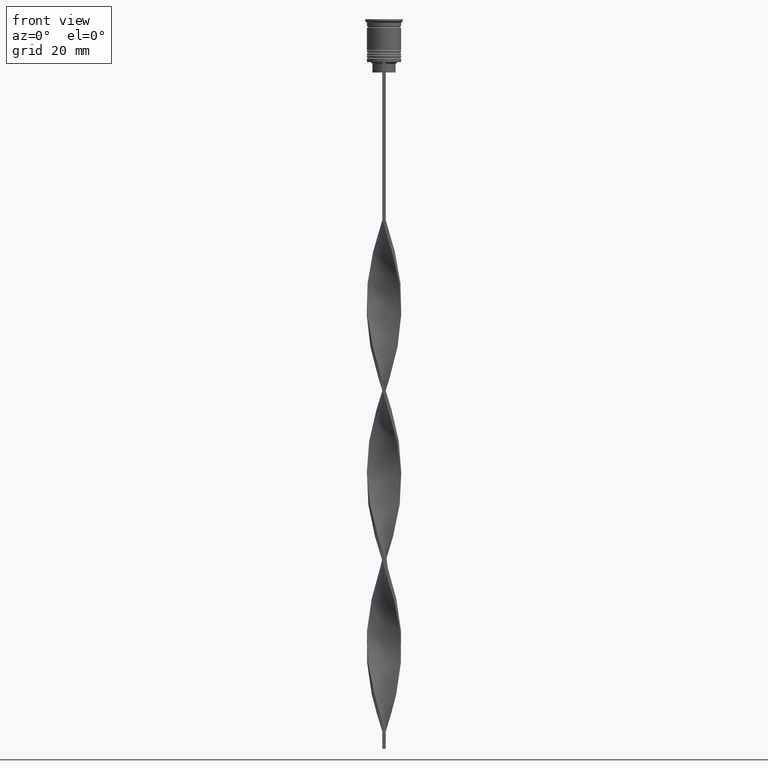
[diagram: clean part render]
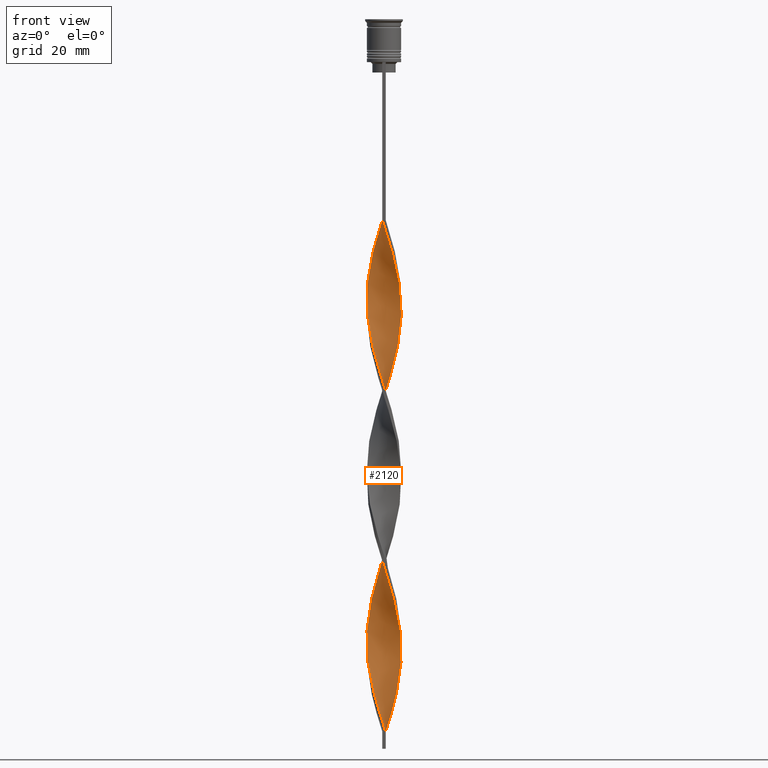
[diagram: same view with one face highlighted and labeled with its STEP entity id]
A machine part, front view. The second image highlights one B-rep face of the part: STEP entity #2120.
In plain terms, the highlighted face is a freeform B-spline surface patch.
Its self-contained STEP definition (entity closure, byte-faithful):
#2 = CARTESIAN_POINT ( 'NONE',  ( -4.049165433819489124, 3.011821659854192479, -170.9803921568627629 ) ) ;
#16 = CARTESIAN_POINT ( 'NONE',  ( 3.057269382251585288, 3.987869597209392936, -198.7352941176470722 ) ) ;
#21 = CARTESIAN_POINT ( 'NONE',  ( -4.533641475362164996, 2.216507476658134301, -74.56862745098038658 ) ) ;
#23 = CARTESIAN_POINT ( 'NONE',  ( 2.207052246521974403, 4.514301760086747883, -149.0686274509803866 ) ) ;
#35 = CARTESIAN_POINT ( 'NONE',  ( 4.291403454590825284, 2.614164568256161392, -93.55882352941176805 ) ) ;
#45 = CARTESIAN_POINT ( 'NONE',  ( -3.737982676843116359, 3.358196764280017454, -169.5196078431372371 ) ) ;
#47 = CARTESIAN_POINT ( 'NONE',  ( -1.410234138924802982, 4.822990739511224589, -160.7549019607842808 ) ) ;
#52 = CARTESIAN_POINT ( 'NONE',  ( -4.252947278887043048, 2.676273424560220882, -125.6960784313725412 ) ) ;
#65 = CARTESIAN_POINT ( 'NONE',  ( 1.857150046639456598, -4.692313302143463538, -112.5490196078431495 ) ) ;
#74 = CARTESIAN_POINT ( 'NONE',  ( -0.4272610392408995317, 5.006740257327792598, -111.0882352941176379 ) ) ;
#82 = CARTESIAN_POINT ( 'NONE',  ( -3.372583611396491321, -3.753996564375790435, -194.3529411764705799 ) ) ;
#92 = CARTESIAN_POINT ( 'NONE',  ( 0.03668176878985084099, 5.046331823121014359, -109.6274509803921546 ) ) ;
#102 = CARTESIAN_POINT ( 'NONE',  ( 2.998973759622456825, 4.031892407926575217, -146.1470588235294201 ) ) ;
#112 = VERTEX_POINT ( 'NONE', #3618 ) ;
#115 = CARTESIAN_POINT ( 'NONE',  ( -3.372583611396490877, 3.753996564375788658, -121.3137254901960631 ) ) ;
#125 = CARTESIAN_POINT ( 'NONE',  ( -5.028189627835278230, 0.4290914677958227452, -179.7450980392157476 ) ) ;
#134 = CARTESIAN_POINT ( 'NONE',  ( -0.5000000000000000000, 5.000000000000000888, -58.50000000000000000 ) ) ;
#141 = CARTESIAN_POINT ( 'NONE',  ( -0.8912038472716539150, -4.967148691534573501, -203.1176470588235361 ) ) ;
#150 = CARTESIAN_POINT ( 'NONE',  ( -4.698685634663581467, 1.781110133205160651, -76.02941176470586981 ) ) ;
#160 = CARTESIAN_POINT ( 'NONE',  ( 1.788740585195520927, -4.718815268696137544, -65.80392156862745878 ) ) ;
#173 = CARTESIAN_POINT ( 'NONE',  ( 1.857150046639457264, 4.692313302143462650, -203.1176470588235361 ) ) ;
#181 = CARTESIAN_POINT ( 'NONE',  ( -4.500940532747436329, 2.282179822423429982, -127.1568627450980244 ) ) ;
#204 = CARTESIAN_POINT ( 'NONE',  ( 3.057269382251585288, 3.987869597209392936, -99.40196078431372939 ) ) ;
#221 = CARTESIAN_POINT ( 'NONE',  ( 0.4999999999999993339, -5.000000000000000888, -207.5000000000000000 ) ) ;
#243 = CARTESIAN_POINT ( 'NONE',  ( -0.5000000000000000000, -4.999999999999999112, -157.8333333333333144 ) ) ;
#251 = CARTESIAN_POINT ( 'NONE',  ( 5.024805061206823353, -0.03652529083100791024, -184.1274509803921546 ) ) ;
#264 = CARTESIAN_POINT ( 'NONE',  ( 1.788740585195520927, -4.718815268696137544, -65.80392156862747299 ) ) ;
#272 = CARTESIAN_POINT ( 'NONE',  ( -4.843652908908672394, -1.416275721470217963, -86.25490196078432348 ) ) ;
#280 = CARTESIAN_POINT ( 'NONE',  ( 4.004954025026647102, -3.070367026697014889, -74.56862745098038658 ) ) ;
#284 = CARTESIAN_POINT ( 'NONE',  ( 4.863729793964998827, 1.345712789752186556, -188.5098039215686185 ) ) ;
#289 = CARTESIAN_POINT ( 'NONE',  ( -1.410234138924802982, 4.822990739511224589, -61.42156862745097357 ) ) ;
#292 = CARTESIAN_POINT ( 'NONE',  ( -0.03668176878985122263, 5.046331823121017024, -156.3725490196078454 ) ) ;
#312 = CARTESIAN_POINT ( 'NONE',  ( -4.004954025026648878, -3.070367026697016666, -92.09803921568628482 ) ) ;
#315 = CARTESIAN_POINT ( 'NONE',  ( 0.4999999999999993339, -5.000000000000000888, -207.5000000000000000 ) ) ;
#323 = DIRECTION ( 'NONE',  ( 0.000000000000000000, 1.000000000000000000, 0.000000000000000000 ) ) ;
#326 = CARTESIAN_POINT ( 'NONE',  ( 4.945959710900135420, 0.8874021287740047059, -87.71568627450979250 ) ) ;
#332 = CARTESIAN_POINT ( 'NONE',  ( -4.698685634663581467, 1.781110133205160651, -76.02941176470586981 ) ) ;
#334 = CARTESIAN_POINT ( 'NONE',  ( -3.737982676843116359, 3.358196764280017454, -169.5196078431372371 ) ) ;
#343 = CARTESIAN_POINT ( 'NONE',  ( -4.945959710900135420, -0.8874021287740040398, -137.3823529411764639 ) ) ;
#360 = CARTESIAN_POINT ( 'NONE',  ( 4.252947278887042160, -2.676273424560222214, -175.3627450980391984 ) ) ;
#369 = CARTESIAN_POINT ( 'NONE',  ( -4.533641475362164996, 2.216507476658134301, -173.9019607843137294 ) ) ;
#371 = CARTESIAN_POINT ( 'NONE',  ( -0.9633182312101491451, 4.953668176878985641, -159.2941176470588118 ) ) ;
#380 = CARTESIAN_POINT ( 'NONE',  ( -2.272444445637942678, -4.481740313928202823, -151.9901960784313530 ) ) ;
#392 = CARTESIAN_POINT ( 'NONE',  ( -3.688768818211570988, -3.412181795536401552, -192.8921568627450824 ) ) ;
#404 = CARTESIAN_POINT ( 'NONE',  ( -4.863729793964999715, -1.345712789752185223, -138.8431372549019045 ) ) ;
#412 = CARTESIAN_POINT ( 'NONE',  ( -3.426799919866744482, 3.704571868705844206, -168.0588235294117680 ) ) ;
#421 = CARTESIAN_POINT ( 'NONE',  ( 4.500940532747437217, -2.282179822423430426, -176.8235294117647243 ) ) ;
#430 = CARTESIAN_POINT ( 'NONE',  ( 1.788740585195520927, 4.718815268696140208, -150.5294117647058840 ) ) ;
#440 = CARTESIAN_POINT ( 'NONE',  ( -2.272444445637943122, 4.481740313928203712, -64.34313725490196134 ) ) ;
#450 = CARTESIAN_POINT ( 'NONE',  ( 0.4272610392408995317, 5.006740257327794374, -154.9117647058823479 ) ) ;
#460 = CARTESIAN_POINT ( 'NONE',  ( 1.857150046639456598, -4.692313302143463538, -112.5490196078431495 ) ) ;
#467 = CARTESIAN_POINT ( 'NONE',  ( 5.024805061206823353, -0.03652529083100791024, -84.79411764705882604 ) ) ;
#475 = CARTESIAN_POINT ( 'NONE',  ( -2.998973759622457713, -4.031892407926574329, -96.48039215686274872 ) ) ;
#486 = CARTESIAN_POINT ( 'NONE',  ( -3.688768818211568323, 3.412181795536401552, -122.7745098039215605 ) ) ;
#496 = CARTESIAN_POINT ( 'NONE',  ( 4.533641475362164108, -2.216507476658135634, -124.2352941176470580 ) ) ;
#505 = CARTESIAN_POINT ( 'NONE',  ( -2.625363907848421885, 4.309788251477359111, -118.3921568627451109 ) ) ;
#528 = CARTESIAN_POINT ( 'NONE',  ( 4.843652908908670618, -1.416275721470217297, -80.41176470588234793 ) ) ;
#535 = ORIENTED_EDGE ( 'NONE', *, *, #3729, .T. ) ;
#565 = CARTESIAN_POINT ( 'NONE',  ( 0.5000000000000006661, 4.999999999999999112, -207.5000000000000000 ) ) ;
#569 = CARTESIAN_POINT ( 'NONE',  ( -3.737982676843116359, 3.358196764280017454, -70.18627450980390847 ) ) ;
#573 = CARTESIAN_POINT ( 'NONE',  ( -2.625363907848424105, -4.309788251477359999, -97.94117647058824616 ) ) ;
#587 = CARTESIAN_POINT ( 'NONE',  ( 4.932536701743520879, -0.9592088854640271611, -81.87254901960783116 ) ) ;
#590 = CARTESIAN_POINT ( 'NONE',  ( 1.339972216233586311, -4.842981980115355078, -163.6764705882352757 ) ) ;
#593 = CARTESIAN_POINT ( 'NONE',  ( -5.021420494578373805, -0.5021420494578369143, -83.33333333333332860 ) ) ;
#595 = CARTESIAN_POINT ( 'NONE',  ( 4.500940532747439882, 2.282179822423429094, -138.8431372549019045 ) ) ;
#604 = CARTESIAN_POINT ( 'NONE',  ( 2.998973759622455937, -4.031892407926573441, -70.18627450980390847 ) ) ;
#609 = CARTESIAN_POINT ( 'NONE',  ( 3.426799919866743149, 3.704571868705843318, -197.2745098039215463 ) ) ;
#616 = CARTESIAN_POINT ( 'NONE',  ( -4.698685634663581467, 1.781110133205160651, -175.3627450980391984 ) ) ;
#625 = CARTESIAN_POINT ( 'NONE',  ( 3.688768818211569211, -3.412181795536401108, -73.10784313725488914 ) ) ;
#628 = CARTESIAN_POINT ( 'NONE',  ( -2.272444445637942678, -4.481740313928202823, -151.9901960784313530 ) ) ;
#634 = CARTESIAN_POINT ( 'NONE',  ( -2.625363907848424105, -4.309788251477359999, -97.94117647058824616 ) ) ;
#635 = CARTESIAN_POINT ( 'NONE',  ( 3.688768818211571876, 3.412181795536401108, -143.2254901960784537 ) ) ;
#643 = CARTESIAN_POINT ( 'NONE',  ( -3.688768818211568323, 3.412181795536401552, -122.7745098039215605 ) ) ;
#650 = CARTESIAN_POINT ( 'NONE',  ( -1.339972216233586977, -4.842981980115355967, -102.3235294117646959 ) ) ;
#653 = CARTESIAN_POINT ( 'NONE',  ( -0.4272610392409010860, -5.006740257327794374, -204.5784313725490335 ) ) ;
#659 = CARTESIAN_POINT ( 'NONE',  ( 2.207052246521970851, -4.514301760086748772, -166.5980392156862706 ) ) ;
#666 = CARTESIAN_POINT ( 'NONE',  ( -3.057269382251586176, 3.987869597209393824, -166.5980392156862706 ) ) ;
#677 = CARTESIAN_POINT ( 'NONE',  ( -1.857150046639457930, -4.692313302143461762, -153.4509803921568789 ) ) ;
#686 = CARTESIAN_POINT ( 'NONE',  ( 2.625363907848424549, 4.309788251477359999, -147.6078431372548891 ) ) ;
#696 = CARTESIAN_POINT ( 'NONE',  ( 3.372583611396490877, -3.753996564375789102, -170.9803921568627629 ) ) ;
#705 = CARTESIAN_POINT ( 'NONE',  ( 5.021420494578373805, 0.5021420494578362481, -133.0000000000000000 ) ) ;
#715 = CARTESIAN_POINT ( 'NONE',  ( -5.028189627835276454, -0.4290914677958234114, -135.9215686274509665 ) ) ;
#723 = CARTESIAN_POINT ( 'NONE',  ( -5.024805061206824242, -0.03652529083100704288, -181.2058823529411598 ) ) ;
#736 = CARTESIAN_POINT ( 'NONE',  ( -5.028189627835278230, 0.4290914677958227452, -80.41176470588234793 ) ) ;
#745 = CARTESIAN_POINT ( 'NONE',  ( -4.672296720828054362, -1.849227771946824417, -187.0490196078431211 ) ) ;
#756 = CARTESIAN_POINT ( 'NONE',  ( 0.03668176878985188183, -5.046331823121017024, -106.7058823529412024 ) ) ;
#766 = CARTESIAN_POINT ( 'NONE',  ( 4.672296720828052585, -1.849227771946823307, -78.95098039215686470 ) ) ;
#779 = CARTESIAN_POINT ( 'NONE',  ( -4.500940532747438994, -2.282179822423430871, -89.17647058823527573 ) ) ;
#787 = CARTESIAN_POINT ( 'NONE',  ( -1.788740585195520483, 4.718815268696137544, -115.4705882352941018 ) ) ;
#797 = CARTESIAN_POINT ( 'NONE',  ( 4.863729793964998827, 1.345712789752186556, -188.5098039215686185 ) ) ;
#808 = CARTESIAN_POINT ( 'NONE',  ( 4.049165433819487347, 3.011821659854190703, -95.01960784313726549 ) ) ;
#828 = CARTESIAN_POINT ( 'NONE',  ( -5.021420494578372029, 0.5021420494578382465, -133.0000000000000000 ) ) ;
#849 = CARTESIAN_POINT ( 'NONE',  ( -4.004954025026647102, 3.070367026697016222, -124.2352941176470580 ) ) ;
#865 = FACE_OUTER_BOUND ( 'NONE', #1157, .T. ) ;
#868 = CARTESIAN_POINT ( 'NONE',  ( 4.500940532747436329, -2.282179822423430426, -176.8235294117647243 ) ) ;
#879 = CARTESIAN_POINT ( 'NONE',  ( -5.024805061206824242, -0.03652529083100704288, -81.87254901960783116 ) ) ;
#893 = CARTESIAN_POINT ( 'NONE',  ( -3.426799919866744037, -3.704571868705841986, -147.6078431372548891 ) ) ;
#901 = CARTESIAN_POINT ( 'NONE',  ( 0.03668176878985188183, -5.046331823121017024, -206.0392156862745026 ) ) ;
#916 = CARTESIAN_POINT ( 'NONE',  ( 5.021420494578372029, -0.5021420494578375804, -182.6666666666666856 ) ) ;
#920 = CARTESIAN_POINT ( 'NONE',  ( -2.687738844636429647, 4.271167325712944773, -65.80392156862745878 ) ) ;
#923 = CARTESIAN_POINT ( 'NONE',  ( -2.625363907848424105, -4.309788251477359999, -197.2745098039215463 ) ) ;
#944 = CARTESIAN_POINT ( 'NONE',  ( -4.843652908908672394, -1.416275721470217963, -185.5882352941176237 ) ) ;
#945 = VERTEX_POINT ( 'NONE', #2390 ) ;
#953 = CARTESIAN_POINT ( 'NONE',  ( 4.932536701743520879, -0.9592088854640271611, -181.2058823529411598 ) ) ;
#957 = CARTESIAN_POINT ( 'NONE',  ( -4.049165433819486459, -3.011821659854192479, -144.6862745098039227 ) ) ;
#960 = CARTESIAN_POINT ( 'NONE',  ( -0.5000000000000000000, 5.000000000000000888, -58.50000000000000000 ) ) ;
#961 = CARTESIAN_POINT ( 'NONE',  ( -3.372583611396491321, -3.753996564375790879, -194.3529411764705799 ) ) ;
#971 = CARTESIAN_POINT ( 'NONE',  ( -4.533641475362163220, -2.216507476658133413, -141.7647058823529562 ) ) ;
#979 = CARTESIAN_POINT ( 'NONE',  ( 0.4999999999999993339, -5.000000000000000888, -108.1666666666666572 ) ) ;
#982 = CARTESIAN_POINT ( 'NONE',  ( -2.998973759622457713, -4.031892407926574329, -195.8137254901960773 ) ) ;
#989 = CARTESIAN_POINT ( 'NONE',  ( -3.057269382251587064, -3.987869597209391159, -149.0686274509803866 ) ) ;
#996 = CARTESIAN_POINT ( 'NONE',  ( -4.932536701743522656, -0.9592088854640269391, -184.1274509803921546 ) ) ;
#1007 = CARTESIAN_POINT ( 'NONE',  ( -4.698685634663579691, -1.781110133205161095, -140.3039215686274588 ) ) ;
#1014 = CARTESIAN_POINT ( 'NONE',  ( -2.625363907848424105, -4.309788251477359999, -197.2745098039215463 ) ) ;
#1026 = CARTESIAN_POINT ( 'NONE',  ( 4.004954025026647102, -3.070367026697014889, -173.9019607843137294 ) ) ;
#1034 = CARTESIAN_POINT ( 'NONE',  ( 4.252947278887043048, 2.676273424560224434, -140.3039215686274588 ) ) ;
#1046 = CARTESIAN_POINT ( 'NONE',  ( -4.004954025026648878, -3.070367026697016666, -92.09803921568628482 ) ) ;
#1053 = CARTESIAN_POINT ( 'NONE',  ( 3.426799919866743149, -3.704571868705845095, -118.3921568627451109 ) ) ;
#1062 = CARTESIAN_POINT ( 'NONE',  ( 4.291403454590825284, 2.614164568256161392, -192.8921568627450824 ) ) ;
#1072 = CARTESIAN_POINT ( 'NONE',  ( 2.625363907848422773, -4.309788251477359111, -68.72549019607842524 ) ) ;
#1080 = CARTESIAN_POINT ( 'NONE',  ( 2.272444445637942234, 4.481740313928202823, -201.6568627450980387 ) ) ;
#1091 = CARTESIAN_POINT ( 'NONE',  ( 2.207052246521970851, -4.514301760086748772, -67.26470588235292780 ) ) ;
#1102 = CARTESIAN_POINT ( 'NONE',  ( 3.426799919866742705, -3.704571868705845095, -118.3921568627451109 ) ) ;
#1110 = CARTESIAN_POINT ( 'NONE',  ( 0.8912038472716523607, -4.967148691534572613, -62.88235294117647101 ) ) ;
#1123 = CARTESIAN_POINT ( 'NONE',  ( 0.4999999999999997780, -1.666666666666667851, -207.5000000000000000 ) ) ;
#1129 = CARTESIAN_POINT ( 'NONE',  ( -1.788740585195522481, -4.718815268696138432, -200.1960784313725696 ) ) ;
#1150 = CARTESIAN_POINT ( 'NONE',  ( -0.5000000000000000000, -4.999999999999999112, -58.50000000000000000 ) ) ;
#1157 = EDGE_LOOP ( 'NONE', ( #535, #3354, #2734, #2328 ) ) ;
#1170 = CARTESIAN_POINT ( 'NONE',  ( -1.410234138924801206, -4.822990739511222813, -154.9117647058823479 ) ) ;
#1174 = CARTESIAN_POINT ( 'NONE',  ( -3.737982676843116359, 3.358196764280017454, -70.18627450980390847 ) ) ;
#1182 = CARTESIAN_POINT ( 'NONE',  ( 4.672296720828052585, -1.849227771946823307, -78.95098039215686470 ) ) ;
#1192 = CARTESIAN_POINT ( 'NONE',  ( -0.9633182312101491451, 4.953668176878985641, -59.96078431372549034 ) ) ;
#1196 = CARTESIAN_POINT ( 'NONE',  ( 3.372583611396490433, 3.753996564375791323, -144.6862745098039227 ) ) ;
#1208 = CARTESIAN_POINT ( 'NONE',  ( 0.8912038472716523607, -4.967148691534572613, -162.2156862745098351 ) ) ;
#1216 = CARTESIAN_POINT ( 'NONE',  ( -4.932536701743522656, -0.9592088854640269391, -184.1274509803921546 ) ) ;
#1229 = CARTESIAN_POINT ( 'NONE',  ( -3.057269382251587064, -3.987869597209391159, -149.0686274509803866 ) ) ;
#1232 = CARTESIAN_POINT ( 'NONE',  ( -4.945959710900137196, 0.8874021287740044839, -78.95098039215686470 ) ) ;
#1233 = CARTESIAN_POINT ( 'NONE',  ( -2.687738844636429203, 4.271167325712945662, -165.1372549019608016 ) ) ;
#1244 = CARTESIAN_POINT ( 'NONE',  ( 2.272444445637942234, 4.481740313928202823, -201.6568627450980387 ) ) ;
#1249 = CARTESIAN_POINT ( 'NONE',  ( -3.372583611396491321, -3.753996564375790435, -95.01960784313726549 ) ) ;
#1262 = CARTESIAN_POINT ( 'NONE',  ( -4.672296720828052585, 1.849227771946825083, -128.6176470588235361 ) ) ;
#1272 = CARTESIAN_POINT ( 'NONE',  ( 1.410234138924801650, -4.822990739511224589, -111.0882352941176379 ) ) ;
#1283 = CARTESIAN_POINT ( 'NONE',  ( -2.207052246521971295, 4.514301760086747883, -116.9313725490195992 ) ) ;
#1294 = CARTESIAN_POINT ( 'NONE',  ( 4.863729793965000603, -1.345712789752187444, -127.1568627450980244 ) ) ;
#1303 = CARTESIAN_POINT ( 'NONE',  ( -0.8912038472716523607, 4.967148691534572613, -112.5490196078431495 ) ) ;
#1310 = CARTESIAN_POINT ( 'NONE',  ( -2.998973759622457713, -4.031892407926574329, -195.8137254901960773 ) ) ;
#1323 = CARTESIAN_POINT ( 'NONE',  ( 0.5000000000000006661, 4.999999999999999112, -108.1666666666666572 ) ) ;
#1330 = CARTESIAN_POINT ( 'NONE',  ( 0.8912038472716545812, 4.967148691534573501, -153.4509803921568789 ) ) ;
#1337 = EDGE_CURVE ( 'NONE', #3496, #945, #3888, .T. ) ;
#1342 = CARTESIAN_POINT ( 'NONE',  ( -4.291403454590826172, -2.614164568256160948, -143.2254901960784537 ) ) ;
#1351 = CARTESIAN_POINT ( 'NONE',  ( -4.252947278887043936, -2.676273424560222658, -189.9705882352941160 ) ) ;
#1358 = EDGE_CURVE ( 'NONE', #112, #2468, #3061, .T. ) ;
#1360 = CARTESIAN_POINT ( 'NONE',  ( -3.057269382251586176, 3.987869597209393824, -67.26470588235292780 ) ) ;
#1368 = CARTESIAN_POINT ( 'NONE',  ( -0.4272610392409010860, -5.006740257327794374, -204.5784313725490335 ) ) ;
#1374 = CARTESIAN_POINT ( 'NONE',  ( 2.272444445637944010, -4.481740313928203712, -114.0098039215686185 ) ) ;
#1385 = CARTESIAN_POINT ( 'NONE',  ( 5.021420494578372029, -0.5021420494578375804, -83.33333333333332860 ) ) ;
#1392 = CARTESIAN_POINT ( 'NONE',  ( -0.4272610392409010860, -5.006740257327794374, -105.2450980392156765 ) ) ;
#1403 = CARTESIAN_POINT ( 'NONE',  ( -4.252947278887043048, 2.676273424560220882, -125.6960784313725412 ) ) ;
#1420 = CARTESIAN_POINT ( 'NONE',  ( 0.5000000000000002220, 1.666666666666666075, -207.5000000000000000 ) ) ;
#1424 = CARTESIAN_POINT ( 'NONE',  ( 1.857150046639457264, 4.692313302143462650, -103.7843137254901791 ) ) ;
#1446 = CARTESIAN_POINT ( 'NONE',  ( 0.9633182312101482569, 4.953668176878984752, -106.7058823529411882 ) ) ;
#1464 = CARTESIAN_POINT ( 'NONE',  ( -0.03668176878985122263, -5.046331823121014359, -159.2941176470588118 ) ) ;
#1473 = CARTESIAN_POINT ( 'NONE',  ( -4.049165433819489124, 3.011821659854192479, -71.64705882352943433 ) ) ;
#1483 = CARTESIAN_POINT ( 'NONE',  ( 2.207052246521970851, -4.514301760086748772, -67.26470588235292780 ) ) ;
#1493 = CARTESIAN_POINT ( 'NONE',  ( 3.057269382251585288, 3.987869597209392936, -198.7352941176470722 ) ) ;
#1501 = CARTESIAN_POINT ( 'NONE',  ( 5.028189627835276454, 0.4290914677958227452, -86.25490196078432348 ) ) ;
#1504 = CARTESIAN_POINT ( 'NONE',  ( 4.698685634663579691, 1.781110133205159318, -189.9705882352941160 ) ) ;
#1511 = CARTESIAN_POINT ( 'NONE',  ( -4.932536701743522656, -0.9592088854640269391, -84.79411764705882604 ) ) ;
#1515 = CARTESIAN_POINT ( 'NONE',  ( -1.857150046639456598, 4.692313302143463538, -162.2156862745098351 ) ) ;
#1527 = CARTESIAN_POINT ( 'NONE',  ( 2.207052246521970851, -4.514301760086748772, -166.5980392156862706 ) ) ;
#1532 = CARTESIAN_POINT ( 'NONE',  ( -5.024805061206824242, -0.03652529083100704288, -81.87254901960783116 ) ) ;
#1537 = CARTESIAN_POINT ( 'NONE',  ( 5.028189627835277342, -0.4290914677958209134, -130.0784313725490335 ) ) ;
#1545 = CARTESIAN_POINT ( 'NONE',  ( 5.024805061206823353, -0.03652529083100791024, -84.79411764705882604 ) ) ;
#1548 = CARTESIAN_POINT ( 'NONE',  ( -2.687738844636428315, -4.271167325712943885, -150.5294117647058840 ) ) ;
#1551 = CARTESIAN_POINT ( 'NONE',  ( -2.272444445637943122, 4.481740313928203712, -64.34313725490196134 ) ) ;
#1562 = CARTESIAN_POINT ( 'NONE',  ( 0.8912038472716523607, -4.967148691534572613, -162.2156862745098351 ) ) ;
#1570 = CARTESIAN_POINT ( 'NONE',  ( -1.857150046639456598, 4.692313302143463538, -62.88235294117647101 ) ) ;
#1572 = CARTESIAN_POINT ( 'NONE',  ( 4.672296720828054362, 1.849227771946823751, -137.3823529411764639 ) ) ;
#1583 = CARTESIAN_POINT ( 'NONE',  ( 0.4272610392409006419, -5.006740257327792598, -160.7549019607842808 ) ) ;
#1590 = CARTESIAN_POINT ( 'NONE',  ( 3.737982676843116359, -3.358196764280017454, -119.8529411764705799 ) ) ;
#1601 = CARTESIAN_POINT ( 'NONE',  ( -1.788740585195520483, 4.718815268696137544, -115.4705882352940876 ) ) ;
#1612 = CARTESIAN_POINT ( 'NONE',  ( 5.024805061206825130, 0.03652529083100763962, -131.5392156862745310 ) ) ;
#1621 = CARTESIAN_POINT ( 'NONE',  ( 1.788740585195520927, -4.718815268696137544, -165.1372549019608016 ) ) ;
#1628 = CARTESIAN_POINT ( 'NONE',  ( 4.945959710900137196, -0.8874021287740062602, -128.6176470588235361 ) ) ;
#1643 = CARTESIAN_POINT ( 'NONE',  ( 4.843652908908670618, -1.416275721470217519, -179.7450980392157192 ) ) ;
#1649 = CARTESIAN_POINT ( 'NONE',  ( -1.857150046639456598, 4.692313302143463538, -162.2156862745098351 ) ) ;
#1666 = CARTESIAN_POINT ( 'NONE',  ( 4.945959710900135420, 0.8874021287740047059, -187.0490196078431211 ) ) ;
#1674 = CARTESIAN_POINT ( 'NONE',  ( -4.863729793964999715, -1.345712789752185001, -138.8431372549019329 ) ) ;
#1682 = CARTESIAN_POINT ( 'NONE',  ( 3.426799919866742705, 3.704571868705843318, -197.2745098039215463 ) ) ;
#1690 = CARTESIAN_POINT ( 'NONE',  ( 5.028189627835276454, 0.4290914677958227452, -86.25490196078432348 ) ) ;
#1696 = CARTESIAN_POINT ( 'NONE',  ( 0.9633182312101494782, -4.953668176878985641, -109.6274509803921546 ) ) ;
#1709 = CARTESIAN_POINT ( 'NONE',  ( 2.998973759622455937, -4.031892407926573441, -70.18627450980390847 ) ) ;
#1719 = CARTESIAN_POINT ( 'NONE',  ( 4.698685634663579691, 1.781110133205159318, -189.9705882352941160 ) ) ;
#1730 = CARTESIAN_POINT ( 'NONE',  ( -0.03668176878985122263, -5.046331823121014359, -59.96078431372549034 ) ) ;
#1747 = CARTESIAN_POINT ( 'NONE',  ( -2.207052246521971739, -4.514301760086749660, -198.7352941176470722 ) ) ;
#1784 = CARTESIAN_POINT ( 'NONE',  ( 0.8912038472716523607, -4.967148691534572613, -62.88235294117647811 ) ) ;
#1788 = CARTESIAN_POINT ( 'NONE',  ( 4.932536701743520879, -0.9592088854640271611, -181.2058823529411598 ) ) ;
#1797 = CARTESIAN_POINT ( 'NONE',  ( -2.207052246521971739, -4.514301760086749660, -99.40196078431372939 ) ) ;
#1807 = CARTESIAN_POINT ( 'NONE',  ( 0.4272610392409006419, -5.006740257327792598, -61.42156862745097357 ) ) ;
#1810 = CARTESIAN_POINT ( 'NONE',  ( 0.4272610392409006419, -5.006740257327792598, -160.7549019607842808 ) ) ;
#1815 = CARTESIAN_POINT ( 'NONE',  ( 4.004954025026648878, 3.070367026697015778, -141.7647058823529562 ) ) ;
#1836 = CARTESIAN_POINT ( 'NONE',  ( 5.024805061206825130, 0.03652529083100763962, -131.5392156862745310 ) ) ;
#1843 = CARTESIAN_POINT ( 'NONE',  ( 4.500940532747437217, -2.282179822423430426, -77.49019607843138147 ) ) ;
#1846 = CARTESIAN_POINT ( 'NONE',  ( 0.9633182312101482569, 4.953668176878984752, -206.0392156862745026 ) ) ;
#1853 = CARTESIAN_POINT ( 'NONE',  ( -4.500940532747438105, -2.282179822423430871, -89.17647058823528994 ) ) ;
#1856 = CARTESIAN_POINT ( 'NONE',  ( 0.4272610392408995317, 5.006740257327794374, -154.9117647058823479 ) ) ;
#1865 = CARTESIAN_POINT ( 'NONE',  ( 1.339972216233586311, -4.842981980115355078, -163.6764705882352757 ) ) ;
#1872 = CARTESIAN_POINT ( 'NONE',  ( -0.8912038472716539150, -4.967148691534573501, -103.7843137254901791 ) ) ;
#1873 = CARTESIAN_POINT ( 'NONE',  ( -4.533641475362164996, 2.216507476658134301, -173.9019607843137294 ) ) ;
#1882 = CARTESIAN_POINT ( 'NONE',  ( 2.625363907848422773, -4.309788251477359111, -168.0588235294117680 ) ) ;
#1889 = CARTESIAN_POINT ( 'NONE',  ( 4.533641475362164108, -2.216507476658135634, -124.2352941176470580 ) ) ;
#1892 = CARTESIAN_POINT ( 'NONE',  ( -0.5000000000000000000, 5.000000000000000888, -157.8333333333333144 ) ) ;
#1902 = CARTESIAN_POINT ( 'NONE',  ( -0.9633182312101489231, -4.953668176878984752, -156.3725490196078454 ) ) ;
#1909 = CARTESIAN_POINT ( 'NONE',  ( -4.004954025026648878, -3.070367026697016666, -191.4313725490196134 ) ) ;
#1920 = CARTESIAN_POINT ( 'NONE',  ( -2.998973759622455937, 4.031892407926573441, -119.8529411764705799 ) ) ;
#1928 = CARTESIAN_POINT ( 'NONE',  ( 4.004954025026648878, 3.070367026697015778, -141.7647058823529562 ) ) ;
#1937 = CARTESIAN_POINT ( 'NONE',  ( -4.932536701743520879, 0.9592088854640268281, -131.5392156862745310 ) ) ;
#1945 = CARTESIAN_POINT ( 'NONE',  ( -4.843652908908672394, -1.416275721470217963, -185.5882352941176237 ) ) ;
#1959 = CARTESIAN_POINT ( 'NONE',  ( 4.533641475362163220, 2.216507476658134301, -191.4313725490196134 ) ) ;
#1965 = CARTESIAN_POINT ( 'NONE',  ( -4.049165433819489124, 3.011821659854192035, -170.9803921568627629 ) ) ;
#1976 = CARTESIAN_POINT ( 'NONE',  ( 0.4999999999999993339, -5.000000000000000888, -108.1666666666666572 ) ) ;
#1986 = CARTESIAN_POINT ( 'NONE',  ( 4.252947278887042160, -2.676273424560222214, -76.02941176470586981 ) ) ;
#1997 = CARTESIAN_POINT ( 'NONE',  ( -4.863729793965000603, 1.345712789752187666, -77.49019607843138147 ) ) ;
#2005 = CARTESIAN_POINT ( 'NONE',  ( 4.698685634663579691, 1.781110133205159318, -90.63725490196078738 ) ) ;
#2015 = CARTESIAN_POINT ( 'NONE',  ( 4.049165433819489124, -3.011821659854192035, -121.3137254901960631 ) ) ;
#2027 = CARTESIAN_POINT ( 'NONE',  ( -4.932536701743520879, 0.9592088854640268281, -131.5392156862745310 ) ) ;
#2040 = CARTESIAN_POINT ( 'NONE',  ( 0.4999999999999993339, -5.000000000000000888, -207.5000000000000000 ) ) ;
#2046 = CARTESIAN_POINT ( 'NONE',  ( 3.426799919866743149, 3.704571868705843318, -97.94117647058824616 ) ) ;
#2060 = CARTESIAN_POINT ( 'NONE',  ( 4.843652908908670618, -1.416275721470217519, -80.41176470588234793 ) ) ;
#2063 = CARTESIAN_POINT ( 'NONE',  ( -5.028189627835276454, -0.4290914677958234114, -135.9215686274509665 ) ) ;
#2066 = CARTESIAN_POINT ( 'NONE',  ( 0.5000000000000006661, 4.999999999999999112, -207.5000000000000000 ) ) ;
#2079 = CARTESIAN_POINT ( 'NONE',  ( -0.5000000000000000000, -4.999999999999999112, -58.50000000000000000 ) ) ;
#2083 = CARTESIAN_POINT ( 'NONE',  ( 1.410234138924802538, 4.822990739511222813, -204.5784313725490335 ) ) ;
#2092 = CARTESIAN_POINT ( 'NONE',  ( 0.9633182312101483680, 4.953668176878984752, -206.0392156862745026 ) ) ;
#2102 = CARTESIAN_POINT ( 'NONE',  ( 4.252947278887042160, -2.676273424560222214, -76.02941176470586981 ) ) ;
#2106 = CARTESIAN_POINT ( 'NONE',  ( -4.698685634663579691, -1.781110133205161095, -140.3039215686274588 ) ) ;
#2116 = CARTESIAN_POINT ( 'NONE',  ( 1.339972216233587421, 4.842981980115355967, -151.9901960784313530 ) ) ;
#2120 = ADVANCED_FACE ( 'NONE', ( #865 ), #3712, .T. ) ;
#2129 = CARTESIAN_POINT ( 'NONE',  ( 1.788740585195520927, -4.718815268696137544, -165.1372549019608016 ) ) ;
#2133 = CARTESIAN_POINT ( 'NONE',  ( -4.843652908908672394, -1.416275721470217963, -86.25490196078432348 ) ) ;
#2134 = CARTESIAN_POINT ( 'NONE',  ( 4.863729793965000603, -1.345712789752187444, -127.1568627450980102 ) ) ;
#2155 = CARTESIAN_POINT ( 'NONE',  ( -3.057269382251586176, 3.987869597209393824, -166.5980392156862706 ) ) ;
#2162 = CARTESIAN_POINT ( 'NONE',  ( 4.533641475362163220, 2.216507476658134301, -92.09803921568628482 ) ) ;
#2165 = CARTESIAN_POINT ( 'NONE',  ( 4.945959710900135420, 0.8874021287740047059, -187.0490196078431211 ) ) ;
#2176 = CARTESIAN_POINT ( 'NONE',  ( 0.8912038472716545812, 4.967148691534573501, -153.4509803921568789 ) ) ;
#2184 = CARTESIAN_POINT ( 'NONE',  ( 1.857150046639457264, 4.692313302143462650, -103.7843137254901933 ) ) ;
#2191 = CARTESIAN_POINT ( 'NONE',  ( 4.932536701743522656, 0.9592088854640251627, -134.4607843137254974 ) ) ;
#2195 = CARTESIAN_POINT ( 'NONE',  ( 5.021420494578372917, 0.5021420494578362481, -133.0000000000000000 ) ) ;
#2202 = CARTESIAN_POINT ( 'NONE',  ( -1.339972216233587421, 4.842981980115354190, -114.0098039215686185 ) ) ;
#2209 = CARTESIAN_POINT ( 'NONE',  ( 2.272444445637944010, -4.481740313928203712, -114.0098039215686185 ) ) ;
#2224 = CARTESIAN_POINT ( 'NONE',  ( -5.024805061206823353, 0.03652529083100964497, -134.4607843137254974 ) ) ;
#2232 = CARTESIAN_POINT ( 'NONE',  ( 0.9633182312101494782, -4.953668176878985641, -109.6274509803921404 ) ) ;
#2244 = CARTESIAN_POINT ( 'NONE',  ( 2.272444445637942234, 4.481740313928202823, -102.3235294117646959 ) ) ;
#2251 = CARTESIAN_POINT ( 'NONE',  ( -2.687738844636429647, 4.271167325712944773, -165.1372549019608016 ) ) ;
#2258 = CARTESIAN_POINT ( 'NONE',  ( -3.688768818211570988, -3.412181795536401552, -93.55882352941176805 ) ) ;
#2265 = CARTESIAN_POINT ( 'NONE',  ( -0.4272610392409010860, -5.006740257327794374, -105.2450980392156765 ) ) ;
#2276 = CARTESIAN_POINT ( 'NONE',  ( -3.372583611396491321, -3.753996564375790879, -95.01960784313725128 ) ) ;
#2283 = CARTESIAN_POINT ( 'NONE',  ( -1.339972216233586977, -4.842981980115355967, -201.6568627450980387 ) ) ;
#2293 = CARTESIAN_POINT ( 'NONE',  ( -0.9633182312101491451, 4.953668176878985641, -59.96078431372549744 ) ) ;
#2302 = CARTESIAN_POINT ( 'NONE',  ( 3.737982676843115915, 3.358196764280015678, -96.48039215686274872 ) ) ;
#2313 = CARTESIAN_POINT ( 'NONE',  ( 3.737982676843116359, -3.358196764280017454, -119.8529411764705799 ) ) ;
#2321 = CARTESIAN_POINT ( 'NONE',  ( 0.5000000000000006661, 4.999999999999999112, -108.1666666666666572 ) ) ;
#2328 = ORIENTED_EDGE ( 'NONE', *, *, #1358, .F. ) ;
#2340 = CARTESIAN_POINT ( 'NONE',  ( 4.291403454590825284, 2.614164568256161392, -93.55882352941176805 ) ) ;
#2361 = CARTESIAN_POINT ( 'NONE',  ( -0.8912038472716523607, 4.967148691534572613, -112.5490196078431495 ) ) ;
#2377 = CARTESIAN_POINT ( 'NONE',  ( 4.252947278887042160, -2.676273424560222214, -175.3627450980391984 ) ) ;
#2384 = CARTESIAN_POINT ( 'NONE',  ( -4.291403454590826172, 2.614164568256163168, -73.10784313725488914 ) ) ;
#2390 = CARTESIAN_POINT ( 'NONE',  ( 0.4999999999999993339, -5.000000000000000888, -207.5000000000000000 ) ) ;
#2394 = CARTESIAN_POINT ( 'NONE',  ( 5.021420494578371141, -0.5021420494578375804, -83.33333333333332860 ) ) ;
#2398 = CARTESIAN_POINT ( 'NONE',  ( 5.028189627835276454, 0.4290914677958227452, -185.5882352941176237 ) ) ;
#2403 = CARTESIAN_POINT ( 'NONE',  ( -4.049165433819489124, 3.011821659854192035, -71.64705882352942012 ) ) ;
#2408 = CARTESIAN_POINT ( 'NONE',  ( -3.688768818211570988, -3.412181795536401552, -192.8921568627450824 ) ) ;
#2421 = CARTESIAN_POINT ( 'NONE',  ( 1.857150046639457264, 4.692313302143462650, -203.1176470588235361 ) ) ;
#2431 = CARTESIAN_POINT ( 'NONE',  ( -1.339972216233586977, -4.842981980115355967, -201.6568627450980387 ) ) ;
#2445 = CARTESIAN_POINT ( 'NONE',  ( 4.672296720828052585, -1.849227771946823307, -178.2843137254901933 ) ) ;
#2448 = CARTESIAN_POINT ( 'NONE',  ( -2.998973759622457713, -4.031892407926574329, -96.48039215686274872 ) ) ;
#2449 = CARTESIAN_POINT ( 'NONE',  ( -4.291403454590826172, 2.614164568256163168, -172.4411764705882035 ) ) ;
#2453 = LINE ( 'NONE', #3067, #3910 ) ;
#2456 = CARTESIAN_POINT ( 'NONE',  ( -0.03668176878985122263, -5.046331823121014359, -59.96078431372549744 ) ) ;
#2464 = CARTESIAN_POINT ( 'NONE',  ( -1.788740585195522481, -4.718815268696138432, -100.8627450980392126 ) ) ;
#2467 = CARTESIAN_POINT ( 'NONE',  ( -4.004954025026648878, -3.070367026697016666, -191.4313725490196134 ) ) ;
#2468 = VERTEX_POINT ( 'NONE', #2066 ) ;
#2476 = CARTESIAN_POINT ( 'NONE',  ( -4.843652908908671506, 1.416275721470215743, -130.0784313725490335 ) ) ;
#2489 = CARTESIAN_POINT ( 'NONE',  ( 2.687738844636429647, -4.271167325712944773, -115.4705882352941018 ) ) ;
#2490 = CARTESIAN_POINT ( 'NONE',  ( 1.788740585195520927, 4.718815268696140208, -150.5294117647058840 ) ) ;
#2497 = CARTESIAN_POINT ( 'NONE',  ( 2.687738844636428759, 4.271167325712943885, -100.8627450980392126 ) ) ;
#2505 = CARTESIAN_POINT ( 'NONE',  ( -4.863729793965000603, 1.345712789752187666, -176.8235294117647243 ) ) ;
#2513 = CARTESIAN_POINT ( 'NONE',  ( 3.057269382251585288, 3.987869597209392936, -99.40196078431372939 ) ) ;
#2522 = CARTESIAN_POINT ( 'NONE',  ( -4.291403454590826172, 2.614164568256163168, -172.4411764705882035 ) ) ;
#2533 = CARTESIAN_POINT ( 'NONE',  ( -0.03668176878985122263, -5.046331823121014359, -159.2941176470588118 ) ) ;
#2540 = CARTESIAN_POINT ( 'NONE',  ( -2.272444445637943122, 4.481740313928203712, -163.6764705882352757 ) ) ;
#2556 = CARTESIAN_POINT ( 'NONE',  ( -4.049165433819486459, -3.011821659854192923, -144.6862745098039227 ) ) ;
#2562 = CARTESIAN_POINT ( 'NONE',  ( 5.028189627835277342, -0.4290914677958209134, -130.0784313725490335 ) ) ;
#2571 = CARTESIAN_POINT ( 'NONE',  ( -5.021420494578372917, -0.5021420494578369143, -83.33333333333332860 ) ) ;
#2579 = CARTESIAN_POINT ( 'NONE',  ( 1.339972216233586311, -4.842981980115355078, -64.34313725490196134 ) ) ;
#2591 = CARTESIAN_POINT ( 'NONE',  ( 2.687738844636429203, -4.271167325712945662, -115.4705882352940876 ) ) ;
#2601 = CARTESIAN_POINT ( 'NONE',  ( 2.687738844636429203, 4.271167325712942997, -100.8627450980392126 ) ) ;
#2613 = CARTESIAN_POINT ( 'NONE',  ( -4.252947278887043936, -2.676273424560222658, -90.63725490196078738 ) ) ;
#2621 = CARTESIAN_POINT ( 'NONE',  ( -4.672296720828052585, 1.849227771946825083, -128.6176470588235361 ) ) ;
#2639 = CARTESIAN_POINT ( 'NONE',  ( 4.004954025026647102, -3.070367026697014889, -74.56862745098038658 ) ) ;
#2661 = CARTESIAN_POINT ( 'NONE',  ( 4.863729793964998827, 1.345712789752186556, -89.17647058823528994 ) ) ;
#2681 = CARTESIAN_POINT ( 'NONE',  ( 2.998973759622455937, -4.031892407926573441, -169.5196078431372371 ) ) ;
#2686 = CARTESIAN_POINT ( 'NONE',  ( 3.737982676843115915, 3.358196764280015678, -195.8137254901960773 ) ) ;
#2708 = CARTESIAN_POINT ( 'NONE',  ( -1.788740585195522481, -4.718815268696138432, -200.1960784313725981 ) ) ;
#2730 = CARTESIAN_POINT ( 'NONE',  ( -4.672296720828054362, -1.849227771946824417, -87.71568627450979250 ) ) ;
#2734 = ORIENTED_EDGE ( 'NONE', *, *, #3396, .F. ) ;
#2736 = CARTESIAN_POINT ( 'NONE',  ( -5.024805061206824242, -0.03652529083100704288, -181.2058823529411598 ) ) ;
#2748 = CARTESIAN_POINT ( 'NONE',  ( 4.004954025026647102, -3.070367026697014889, -173.9019607843137294 ) ) ;
#2755 = CARTESIAN_POINT ( 'NONE',  ( -2.272444445637943122, 4.481740313928203712, -163.6764705882352757 ) ) ;
#2763 = CARTESIAN_POINT ( 'NONE',  ( 4.863729793964998827, 1.345712789752186556, -89.17647058823527573 ) ) ;
#2767 = CARTESIAN_POINT ( 'NONE',  ( 4.049165433819487347, 3.011821659854190703, -194.3529411764705799 ) ) ;
#2781 = CARTESIAN_POINT ( 'NONE',  ( 4.698685634663579691, 1.781110133205159318, -90.63725490196078738 ) ) ;
#2789 = CARTESIAN_POINT ( 'NONE',  ( -4.500940532747438105, -2.282179822423430871, -188.5098039215686185 ) ) ;
#2800 = CARTESIAN_POINT ( 'NONE',  ( 5.021420494578371141, -0.5021420494578375804, -182.6666666666666572 ) ) ;
#2810 = CARTESIAN_POINT ( 'NONE',  ( -0.5000000000000000000, 5.000000000000000888, -157.8333333333333144 ) ) ;
#2819 = CARTESIAN_POINT ( 'NONE',  ( 4.049165433819487347, 3.011821659854191147, -95.01960784313725128 ) ) ;
#2827 = CARTESIAN_POINT ( 'NONE',  ( 3.057269382251586620, -3.987869597209393824, -116.9313725490195992 ) ) ;
#2833 = CARTESIAN_POINT ( 'NONE',  ( 1.410234138924802538, 4.822990739511222813, -105.2450980392156765 ) ) ;
#2842 = CARTESIAN_POINT ( 'NONE',  ( 0.03668176878985187489, -5.046331823121017024, -106.7058823529411882 ) ) ;
#2857 = CARTESIAN_POINT ( 'NONE',  ( 0.9633182312101483680, 4.953668176878984752, -106.7058823529412024 ) ) ;
#2865 = CARTESIAN_POINT ( 'NONE',  ( -1.410234138924802982, 4.822990739511224589, -160.7549019607842808 ) ) ;
#2880 = CARTESIAN_POINT ( 'NONE',  ( -1.410234138924802982, 4.822990739511224589, -61.42156862745097357 ) ) ;
#2887 = CARTESIAN_POINT ( 'NONE',  ( 0.03668176878985187489, -5.046331823121017024, -206.0392156862745026 ) ) ;
#2898 = CARTESIAN_POINT ( 'NONE',  ( -4.932536701743522656, -0.9592088854640269391, -84.79411764705882604 ) ) ;
#2919 = CARTESIAN_POINT ( 'NONE',  ( 4.049165433819487347, 3.011821659854191147, -194.3529411764705799 ) ) ;
#2922 = CARTESIAN_POINT ( 'NONE',  ( 0.5000000000000006661, 4.999999999999999112, -207.5000000000000000 ) ) ;
#2929 = CARTESIAN_POINT ( 'NONE',  ( 4.500940532747436329, -2.282179822423430426, -77.49019607843136725 ) ) ;
#2946 = CARTESIAN_POINT ( 'NONE',  ( 3.372583611396490433, -3.753996564375789102, -71.64705882352942012 ) ) ;
#2962 = CARTESIAN_POINT ( 'NONE',  ( 4.945959710900135420, 0.8874021287740047059, -87.71568627450979250 ) ) ;
#2984 = CARTESIAN_POINT ( 'NONE',  ( -0.9633182312101489231, -4.953668176878984752, -156.3725490196078454 ) ) ;
#2993 = CARTESIAN_POINT ( 'NONE',  ( 4.698685634663582356, -1.781110133205159318, -125.6960784313725412 ) ) ;
#3006 = CARTESIAN_POINT ( 'NONE',  ( 1.339972216233586311, -4.842981980115355078, -64.34313725490196134 ) ) ;
#3015 = CARTESIAN_POINT ( 'NONE',  ( -4.533641475362164996, 2.216507476658134301, -74.56862745098038658 ) ) ;
#3030 = CARTESIAN_POINT ( 'NONE',  ( 3.372583611396490433, -3.753996564375789102, -170.9803921568627629 ) ) ;
#3036 = CARTESIAN_POINT ( 'NONE',  ( 2.625363907848424549, 4.309788251477359999, -147.6078431372548891 ) ) ;
#3048 = CARTESIAN_POINT ( 'NONE',  ( 3.372583611396490877, -3.753996564375789102, -71.64705882352943433 ) ) ;
#3058 = CARTESIAN_POINT ( 'NONE',  ( -3.426799919866744037, 3.704571868705844206, -168.0588235294117680 ) ) ;
#3061 =( BOUNDED_CURVE ( )  B_SPLINE_CURVE ( 2, ( #1150, #1730, #3823, #1110, #2579, #160, #1091, #1072, #1709, #2946, #3514, #2639, #1986, #2929, #766, #528, #3211, #1385, #467, #1690, #2962, #2661, #2005, #3880, #2340, #808, #2302, #2046, #204, #2601, #3841, #1424, #3573, #1446, #2321, #3901, #3533, #2361, #3272, #787, #3863, #505, #3230, #3254, #486, #849, #1403, #181, #2621, #3550, #2027, #828, #3594, #2063, #3290, #1674, #2106, #3661, #3942, #957, #3333, #893, #1229, #1548, #628, #3987, #1170, #2984, #243, #1464, #1810, #1208, #590, #2129, #1527, #3703, #2681, #3030, #3637, #2748, #2377, #868, #2445, #3924, #1788, #916, #3373, #2398, #2165, #284, #1504, #3351, #3963, #2767, #3613, #609, #16, #3309, #1244, #2421, #2083, #1846, #565 ),
 .UNSPECIFIED., .F., .T. ) 
 B_SPLINE_CURVE_WITH_KNOTS ( ( 3, 2, 2, 2, 2, 2, 2, 2, 2, 2, 2, 2, 2, 2, 2, 2, 2, 2, 2, 2, 2, 2, 2, 2, 2, 2, 2, 2, 2, 2, 2, 2, 2, 2, 2, 2, 2, 2, 2, 2, 2, 2, 2, 2, 2, 2, 2, 2, 2, 2, 2, 3 ),
 ( 0.000000000000000000, 0.01470588235294117453, 0.02941176470588234906, 0.04411764705882353227, 0.05882352941176469813, 0.07352941176470588480, 0.08823529411764706454, 0.1029411764705882443, 0.1176470588235293963, 0.1323529411764705899, 0.1470588235294117696, 0.1617647058823529493, 0.1764705882352941291, 0.1911764705882352811, 0.2058823529411764885, 0.2205882352941176405, 0.2352941176470587925, 0.2500000000000000000, 0.2647058823529411797, 0.2794117647058823595, 0.2941176470588235392, 0.3088235294117647189, 0.3235294117647058987, 0.3382352941176470229, 0.3529411764705882582, 0.3676470588235294379, 0.3823529411764705621, 0.3970588235294117418, 0.4117647058823529771, 0.4264705882352941013, 0.4411764705882352811, 0.4558823529411764608, 0.4705882352941175850, 0.4852941176470588203, 0.5000000000000000000, 0.5147058823529411242, 0.5294117647058823595, 0.5441176470588234837, 0.5588235294117647189, 0.5735294117647058432, 0.5882352941176470784, 0.6029411764705882026, 0.6176470588235294379, 0.6323529411764705621, 0.6470588235294117974, 0.6617647058823529216, 0.6764705882352940458, 0.6911764705882351700, 0.7058823529411765163, 0.7205882352941176405, 0.7352941176470588758, 0.7500000000000000000 ),
 .UNSPECIFIED. ) 
 CURVE ( )  GEOMETRIC_REPRESENTATION_ITEM ( )  RATIONAL_B_SPLINE_CURVE ( ( 1.000000000000000000, 0.9957341762950344677, 1.000000000000000000, 0.9957341762950344677, 1.000000000000000000, 0.9957341762950344677, 1.000000000000000000, 0.9957341762950344677, 1.000000000000000000, 0.9957341762950344677, 1.000000000000000000, 0.9957341762950344677, 1.000000000000000000, 0.9957341762950344677, 1.000000000000000000, 0.9957341762950344677, 1.000000000000000000, 0.9957341762950344677, 1.000000000000000000, 0.9957341762950344677, 1.000000000000000000, 0.9957341762950344677, 1.000000000000000000, 0.9957341762950344677, 1.000000000000000000, 0.9957341762950344677, 1.000000000000000000, 0.9957341762950344677, 1.000000000000000000, 0.9957341762950344677, 1.000000000000000000, 0.9957341762950344677, 1.000000000000000000, 0.9957341762950344677, 1.000000000000000000, 0.9957341762950344677, 1.000000000000000000, 0.9957341762950344677, 1.000000000000000000, 0.9957341762950344677, 1.000000000000000000, 0.9957341762950344677, 1.000000000000000000, 0.9957341762950344677, 1.000000000000000000, 0.9957341762950344677, 1.000000000000000000, 0.9957341762950344677, 1.000000000000000000, 0.9957341762950344677, 1.000000000000000000, 0.9957341762950344677, 1.000000000000000000, 0.9957341762950344677, 1.000000000000000000, 0.9957341762950344677, 1.000000000000000000, 0.9957341762950344677, 1.000000000000000000, 0.9957341762950344677, 1.000000000000000000, 0.9957341762950344677, 1.000000000000000000, 0.9957341762950344677, 1.000000000000000000, 0.9957341762950344677, 1.000000000000000000, 0.9957341762950344677, 1.000000000000000000, 0.9957341762950344677, 1.000000000000000000, 0.9957341762950344677, 1.000000000000000000, 0.9957341762950344677, 1.000000000000000000, 0.9957341762950344677, 1.000000000000000000, 0.9957341762950344677, 1.000000000000000000, 0.9957341762950344677, 1.000000000000000000, 0.9957341762950344677, 1.000000000000000000, 0.9957341762950344677, 1.000000000000000000, 0.9957341762950344677, 1.000000000000000000, 0.9957341762950344677, 1.000000000000000000, 0.9957341762950344677, 1.000000000000000000, 0.9957341762950344677, 1.000000000000000000, 0.9957341762950344677, 1.000000000000000000, 0.9957341762950344677, 1.000000000000000000, 0.9957341762950344677, 1.000000000000000000, 0.9957341762950344677, 1.000000000000000000, 0.9957341762950344677, 1.000000000000000000 ) ) 
 REPRESENTATION_ITEM ( '' )  );
#3067 = CARTESIAN_POINT ( 'NONE',  ( -0.5000000000000000000, -4.999999999999999112, -58.50000000000000000 ) ) ;
#3079 = CARTESIAN_POINT ( 'NONE',  ( -2.207052246521971739, -4.514301760086749660, -99.40196078431372939 ) ) ;
#3082 = CARTESIAN_POINT ( 'NONE',  ( -4.500940532747438994, -2.282179822423430871, -188.5098039215686185 ) ) ;
#3088 = CARTESIAN_POINT ( 'NONE',  ( 4.672296720828052585, -1.849227771946823307, -178.2843137254901933 ) ) ;
#3096 = CARTESIAN_POINT ( 'NONE',  ( -2.207052246521971739, -4.514301760086749660, -198.7352941176470722 ) ) ;
#3104 = CARTESIAN_POINT ( 'NONE',  ( 2.998973759622455937, -4.031892407926573441, -169.5196078431372371 ) ) ;
#3114 = CARTESIAN_POINT ( 'NONE',  ( -4.698685634663581467, 1.781110133205160651, -175.3627450980391984 ) ) ;
#3116 = CARTESIAN_POINT ( 'NONE',  ( 4.945959710900137196, -0.8874021287740062602, -128.6176470588235361 ) ) ;
#3125 = CARTESIAN_POINT ( 'NONE',  ( -0.5000000000000000000, -4.999999999999999112, -157.8333333333333144 ) ) ;
#3134 = CARTESIAN_POINT ( 'NONE',  ( 4.672296720828054362, 1.849227771946823751, -137.3823529411764639 ) ) ;
#3143 = CARTESIAN_POINT ( 'NONE',  ( -4.500940532747437217, 2.282179822423429982, -127.1568627450980102 ) ) ;
#3153 = CARTESIAN_POINT ( 'NONE',  ( -0.9633182312101491451, 4.953668176878985641, -159.2941176470588118 ) ) ;
#3163 = CARTESIAN_POINT ( 'NONE',  ( -3.737982676843114582, -3.358196764280017010, -146.1470588235294201 ) ) ;
#3171 = CARTESIAN_POINT ( 'NONE',  ( 3.372583611396489989, 3.753996564375790879, -144.6862745098039227 ) ) ;
#3184 = CARTESIAN_POINT ( 'NONE',  ( -0.8912038472716539150, -4.967148691534573501, -103.7843137254901933 ) ) ;
#3191 = CARTESIAN_POINT ( 'NONE',  ( 2.207052246521974403, 4.514301760086747883, -149.0686274509803866 ) ) ;
#3204 = CARTESIAN_POINT ( 'NONE',  ( 1.410234138924801650, -4.822990739511224589, -111.0882352941176379 ) ) ;
#3211 = CARTESIAN_POINT ( 'NONE',  ( 4.932536701743520879, -0.9592088854640271611, -81.87254901960783116 ) ) ;
#3221 = CARTESIAN_POINT ( 'NONE',  ( 1.410234138924802538, 4.822990739511222813, -204.5784313725490335 ) ) ;
#3230 = CARTESIAN_POINT ( 'NONE',  ( -2.998973759622455937, 4.031892407926573441, -119.8529411764705799 ) ) ;
#3240 = B_SPLINE_CURVE_WITH_KNOTS ( 'NONE', 3,
 ( #2922, #1420, #1123, #2040 ),
 .UNSPECIFIED., .F., .F.,
 ( 4, 4 ),
 ( 0.000000000000000000, 1.000000000000000000 ),
 .UNSPECIFIED. ) ;
#3243 = CARTESIAN_POINT ( 'NONE',  ( 4.291403454590826172, -2.614164568256163612, -122.7745098039215605 ) ) ;
#3254 = CARTESIAN_POINT ( 'NONE',  ( -3.372583611396490877, 3.753996564375788658, -121.3137254901960773 ) ) ;
#3272 = CARTESIAN_POINT ( 'NONE',  ( -1.339972216233587421, 4.842981980115354190, -114.0098039215686185 ) ) ;
#3290 = CARTESIAN_POINT ( 'NONE',  ( -4.945959710900135420, -0.8874021287740040398, -137.3823529411764639 ) ) ;
#3303 = CARTESIAN_POINT ( 'NONE',  ( -0.5000000000000000000, 5.000000000000000888, -58.50000000000000000 ) ) ;
#3309 = CARTESIAN_POINT ( 'NONE',  ( 2.687738844636429203, 4.271167325712942997, -200.1960784313725696 ) ) ;
#3317 = CARTESIAN_POINT ( 'NONE',  ( -4.672296720828054362, -1.849227771946824417, -87.71568627450979250 ) ) ;
#3333 = CARTESIAN_POINT ( 'NONE',  ( -3.737982676843114582, -3.358196764280017010, -146.1470588235294201 ) ) ;
#3339 = CARTESIAN_POINT ( 'NONE',  ( -4.863729793965000603, 1.345712789752187666, -176.8235294117647243 ) ) ;
#3351 = CARTESIAN_POINT ( 'NONE',  ( 4.533641475362163220, 2.216507476658134301, -191.4313725490196134 ) ) ;
#3353 = CARTESIAN_POINT ( 'NONE',  ( -4.291403454590826172, 2.614164568256163168, -73.10784313725488914 ) ) ;
#3354 = ORIENTED_EDGE ( 'NONE', *, *, #1337, .T. ) ;
#3355 = CARTESIAN_POINT ( 'NONE',  ( 4.843652908908672394, 1.416275721470218629, -135.9215686274509665 ) ) ;
#3373 = CARTESIAN_POINT ( 'NONE',  ( 5.024805061206823353, -0.03652529083100791024, -184.1274509803921546 ) ) ;
#3379 = CARTESIAN_POINT ( 'NONE',  ( -4.672296720828054362, -1.849227771946824417, -187.0490196078431211 ) ) ;
#3387 = CARTESIAN_POINT ( 'NONE',  ( 3.737982676843115915, 3.358196764280015678, -96.48039215686274872 ) ) ;
#3396 = EDGE_CURVE ( 'NONE', #2468, #945, #3240, .T. ) ;
#3398 = CARTESIAN_POINT ( 'NONE',  ( -3.688768818211570988, -3.412181795536401552, -93.55882352941176805 ) ) ;
#3401 = CARTESIAN_POINT ( 'NONE',  ( -5.028189627835278230, 0.4290914677958227452, -179.7450980392157192 ) ) ;
#3408 = CARTESIAN_POINT ( 'NONE',  ( -3.426799919866743593, -3.704571868705841986, -147.6078431372548891 ) ) ;
#3414 = CARTESIAN_POINT ( 'NONE',  ( -0.03668176878985122263, 5.046331823121017024, -156.3725490196078454 ) ) ;
#3425 = CARTESIAN_POINT ( 'NONE',  ( -2.687738844636427871, -4.271167325712944773, -150.5294117647058840 ) ) ;
#3435 = CARTESIAN_POINT ( 'NONE',  ( 3.688768818211571876, 3.412181795536401108, -143.2254901960784537 ) ) ;
#3447 = CARTESIAN_POINT ( 'NONE',  ( -1.410234138924801206, -4.822990739511222813, -154.9117647058823479 ) ) ;
#3456 = CARTESIAN_POINT ( 'NONE',  ( 4.291403454590826172, -2.614164568256163612, -122.7745098039215605 ) ) ;
#3469 = CARTESIAN_POINT ( 'NONE',  ( 3.426799919866742705, 3.704571868705843318, -97.94117647058824616 ) ) ;
#3478 = CARTESIAN_POINT ( 'NONE',  ( -4.945959710900137196, 0.8874021287740044839, -178.2843137254901933 ) ) ;
#3488 = CARTESIAN_POINT ( 'NONE',  ( 0.5000000000000006661, 4.999999999999999112, -207.5000000000000000 ) ) ;
#3496 = VERTEX_POINT ( 'NONE', #3303 ) ;
#3498 = CARTESIAN_POINT ( 'NONE',  ( 4.049165433819489124, -3.011821659854191591, -121.3137254901960773 ) ) ;
#3507 = CARTESIAN_POINT ( 'NONE',  ( -2.687738844636429203, 4.271167325712945662, -65.80392156862747299 ) ) ;
#3514 = CARTESIAN_POINT ( 'NONE',  ( 3.688768818211569211, -3.412181795536401108, -73.10784313725488914 ) ) ;
#3525 = CARTESIAN_POINT ( 'NONE',  ( 2.687738844636428759, 4.271167325712943885, -200.1960784313725981 ) ) ;
#3533 = CARTESIAN_POINT ( 'NONE',  ( -0.4272610392408995317, 5.006740257327792598, -111.0882352941176379 ) ) ;
#3542 = CARTESIAN_POINT ( 'NONE',  ( -1.788740585195522481, -4.718815268696138432, -100.8627450980392126 ) ) ;
#3550 = CARTESIAN_POINT ( 'NONE',  ( -4.843652908908671506, 1.416275721470215743, -130.0784313725490335 ) ) ;
#3573 = CARTESIAN_POINT ( 'NONE',  ( 1.410234138924802538, 4.822990739511222813, -105.2450980392156765 ) ) ;
#3594 = CARTESIAN_POINT ( 'NONE',  ( -5.024805061206823353, 0.03652529083100964497, -134.4607843137254974 ) ) ;
#3613 = CARTESIAN_POINT ( 'NONE',  ( 3.737982676843115915, 3.358196764280015678, -195.8137254901960773 ) ) ;
#3618 = CARTESIAN_POINT ( 'NONE',  ( -0.5000000000000000000, -4.999999999999999112, -58.50000000000000000 ) ) ;
#3623 = CARTESIAN_POINT ( 'NONE',  ( -4.945959710900137196, 0.8874021287740044839, -78.95098039215686470 ) ) ;
#3637 = CARTESIAN_POINT ( 'NONE',  ( 3.688768818211569211, -3.412181795536401108, -172.4411764705882035 ) ) ;
#3641 = CARTESIAN_POINT ( 'NONE',  ( -5.028189627835278230, 0.4290914677958227452, -80.41176470588234793 ) ) ;
#3645 = CARTESIAN_POINT ( 'NONE',  ( -4.945959710900137196, 0.8874021287740044839, -178.2843137254901933 ) ) ;
#3661 = CARTESIAN_POINT ( 'NONE',  ( -4.533641475362163220, -2.216507476658133413, -141.7647058823529562 ) ) ;
#3669 = CARTESIAN_POINT ( 'NONE',  ( -4.252947278887043936, -2.676273424560222658, -189.9705882352941160 ) ) ;
#3686 = CARTESIAN_POINT ( 'NONE',  ( -4.863729793965000603, 1.345712789752187666, -77.49019607843136725 ) ) ;
#3688 = CARTESIAN_POINT ( 'NONE',  ( 4.932536701743522656, 0.9592088854640251627, -134.4607843137254974 ) ) ;
#3703 = CARTESIAN_POINT ( 'NONE',  ( 2.625363907848422773, -4.309788251477359111, -168.0588235294117680 ) ) ;
#3707 = CARTESIAN_POINT ( 'NONE',  ( -0.8912038472716539150, -4.967148691534573501, -203.1176470588235361 ) ) ;
#3712 =( BOUNDED_SURFACE ( )  B_SPLINE_SURFACE ( 1, 2, ( 
 ( #2079, #2456, #1807, #1784, #3006, #264, #1483, #3938, #604, #3048, #625, #280, #2102, #1843, #1182, #2060, #587, #2394, #1545, #1501, #326, #2763, #2781, #2162, #35, #2819, #3387, #3469, #2513, #2497, #2244, #2184, #2833, #2857, #1323, #92, #74, #1303, #2202, #1601, #1283, #3758, #1920, #115, #643, #3740, #52, #3143, #1262, #2476, #1937, #3718, #2224, #715, #343, #404, #1007, #971, #1342, #2556, #3163, #3408, #989, #3425, #380, #677, #3447, #1902, #3125, #2533, #1583, #1562, #1865, #1621, #659, #1882, #3104, #696, #3779, #1026, #360, #421, #3088, #1643, #953, #2800, #251, #3801, #1666, #797, #1719, #1959, #1062, #2919, #2686, #1682, #1493, #3525, #1080, #173, #3221, #2092, #3488 ),
 ( #134, #2293, #2880, #3929, #440, #3507, #1360, #3813, #1174, #1473, #2384, #3015, #150, #1997, #3623, #736, #879, #2571, #2898, #272, #3317, #779, #2613, #1046, #2258, #2276, #475, #573, #1797, #3542, #3855, #3184, #1392, #756, #1976, #1696, #3204, #460, #1374, #2591, #3832, #1102, #2313, #2015, #3243, #496, #2993, #2134, #3116, #1537, #1836, #2195, #3688, #3355, #1572, #595, #3949, #1815, #635, #1196, #3734, #3036, #23, #2490, #2116, #2176, #1856, #292, #1892, #371, #47, #1515, #2755, #1233, #2155, #3058, #334, #2, #2449, #1873, #616, #3339, #3645, #3401, #2736, #3973, #1216, #944, #3379, #3082, #3669, #2467, #2408, #961, #982, #923, #3096, #2708, #2431, #3707, #653, #901, #315 ) ),
 .UNSPECIFIED., .F., .F., .F. ) 
 B_SPLINE_SURFACE_WITH_KNOTS ( ( 2, 2 ),
 ( 3, 2, 2, 2, 2, 2, 2, 2, 2, 2, 2, 2, 2, 2, 2, 2, 2, 2, 2, 2, 2, 2, 2, 2, 2, 2, 2, 2, 2, 2, 2, 2, 2, 2, 2, 2, 2, 2, 2, 2, 2, 2, 2, 2, 2, 2, 2, 2, 2, 2, 2, 3 ),
 ( 0.000000000000000000, 1.000000000000000000 ),
 ( 0.000000000000000000, 0.01470588235294117627, 0.02941176470588235253, 0.04411764705882353227, 0.05882352941176470507, 0.07352941176470588480, 0.08823529411764706454, 0.1029411764705882304, 0.1176470588235294101, 0.1323529411764705899, 0.1470588235294117696, 0.1617647058823529493, 0.1764705882352941291, 0.1911764705882352811, 0.2058823529411764608, 0.2205882352941176405, 0.2352941176470588203, 0.2500000000000000000, 0.2647058823529411797, 0.2794117647058823595, 0.2941176470588235392, 0.3088235294117647189, 0.3235294117647058987, 0.3382352941176470784, 0.3529411764705882582, 0.3676470588235294379, 0.3823529411764705621, 0.3970588235294117418, 0.4117647058823529216, 0.4264705882352941013, 0.4411764705882352811, 0.4558823529411764608, 0.4705882352941176405, 0.4852941176470588203, 0.5000000000000000000, 0.5147058823529411242, 0.5294117647058823595, 0.5441176470588234837, 0.5588235294117647189, 0.5735294117647058432, 0.5882352941176470784, 0.6029411764705882026, 0.6176470588235294379, 0.6323529411764705621, 0.6470588235294117974, 0.6617647058823529216, 0.6764705882352941568, 0.6911764705882352811, 0.7058823529411765163, 0.7205882352941176405, 0.7352941176470588758, 0.7500000000000000000 ),
 .UNSPECIFIED. ) 
 GEOMETRIC_REPRESENTATION_ITEM ( )  RATIONAL_B_SPLINE_SURFACE ( (
 ( 1.000000000000000000, 0.9957341762950344677, 1.000000000000000000, 0.9957341762950344677, 1.000000000000000000, 0.9957341762950344677, 1.000000000000000000, 0.9957341762950344677, 1.000000000000000000, 0.9957341762950344677, 1.000000000000000000, 0.9957341762950344677, 1.000000000000000000, 0.9957341762950344677, 1.000000000000000000, 0.9957341762950344677, 1.000000000000000000, 0.9957341762950344677, 1.000000000000000000, 0.9957341762950344677, 1.000000000000000000, 0.9957341762950344677, 1.000000000000000000, 0.9957341762950344677, 1.000000000000000000, 0.9957341762950344677, 1.000000000000000000, 0.9957341762950344677, 1.000000000000000000, 0.9957341762950344677, 1.000000000000000000, 0.9957341762950344677, 1.000000000000000000, 0.9957341762950344677, 1.000000000000000000, 0.9957341762950344677, 1.000000000000000000, 0.9957341762950344677, 1.000000000000000000, 0.9957341762950344677, 1.000000000000000000, 0.9957341762950344677, 1.000000000000000000, 0.9957341762950344677, 1.000000000000000000, 0.9957341762950344677, 1.000000000000000000, 0.9957341762950344677, 1.000000000000000000, 0.9957341762950344677, 1.000000000000000000, 0.9957341762950344677, 1.000000000000000000, 0.9957341762950344677, 1.000000000000000000, 0.9957341762950344677, 1.000000000000000000, 0.9957341762950344677, 1.000000000000000000, 0.9957341762950344677, 1.000000000000000000, 0.9957341762950344677, 1.000000000000000000, 0.9957341762950344677, 1.000000000000000000, 0.9957341762950344677, 1.000000000000000000, 0.9957341762950344677, 1.000000000000000000, 0.9957341762950344677, 1.000000000000000000, 0.9957341762950344677, 1.000000000000000000, 0.9957341762950344677, 1.000000000000000000, 0.9957341762950344677, 1.000000000000000000, 0.9957341762950344677, 1.000000000000000000, 0.9957341762950344677, 1.000000000000000000, 0.9957341762950344677, 1.000000000000000000, 0.9957341762950344677, 1.000000000000000000, 0.9957341762950344677, 1.000000000000000000, 0.9957341762950344677, 1.000000000000000000, 0.9957341762950344677, 1.000000000000000000, 0.9957341762950344677, 1.000000000000000000, 0.9957341762950344677, 1.000000000000000000, 0.9957341762950344677, 1.000000000000000000, 0.9957341762950344677, 1.000000000000000000, 0.9957341762950344677, 1.000000000000000000, 0.9957341762950344677, 1.000000000000000000),
 ( 1.000000000000000000, 0.9957341762950344677, 1.000000000000000000, 0.9957341762950344677, 1.000000000000000000, 0.9957341762950344677, 1.000000000000000000, 0.9957341762950344677, 1.000000000000000000, 0.9957341762950344677, 1.000000000000000000, 0.9957341762950344677, 1.000000000000000000, 0.9957341762950344677, 1.000000000000000000, 0.9957341762950344677, 1.000000000000000000, 0.9957341762950344677, 1.000000000000000000, 0.9957341762950344677, 1.000000000000000000, 0.9957341762950344677, 1.000000000000000000, 0.9957341762950344677, 1.000000000000000000, 0.9957341762950344677, 1.000000000000000000, 0.9957341762950344677, 1.000000000000000000, 0.9957341762950344677, 1.000000000000000000, 0.9957341762950344677, 1.000000000000000000, 0.9957341762950344677, 1.000000000000000000, 0.9957341762950344677, 1.000000000000000000, 0.9957341762950344677, 1.000000000000000000, 0.9957341762950344677, 1.000000000000000000, 0.9957341762950344677, 1.000000000000000000, 0.9957341762950344677, 1.000000000000000000, 0.9957341762950344677, 1.000000000000000000, 0.9957341762950344677, 1.000000000000000000, 0.9957341762950344677, 1.000000000000000000, 0.9957341762950344677, 1.000000000000000000, 0.9957341762950344677, 1.000000000000000000, 0.9957341762950344677, 1.000000000000000000, 0.9957341762950344677, 1.000000000000000000, 0.9957341762950344677, 1.000000000000000000, 0.9957341762950344677, 1.000000000000000000, 0.9957341762950344677, 1.000000000000000000, 0.9957341762950344677, 1.000000000000000000, 0.9957341762950344677, 1.000000000000000000, 0.9957341762950344677, 1.000000000000000000, 0.9957341762950344677, 1.000000000000000000, 0.9957341762950344677, 1.000000000000000000, 0.9957341762950344677, 1.000000000000000000, 0.9957341762950344677, 1.000000000000000000, 0.9957341762950344677, 1.000000000000000000, 0.9957341762950344677, 1.000000000000000000, 0.9957341762950344677, 1.000000000000000000, 0.9957341762950344677, 1.000000000000000000, 0.9957341762950344677, 1.000000000000000000, 0.9957341762950344677, 1.000000000000000000, 0.9957341762950344677, 1.000000000000000000, 0.9957341762950344677, 1.000000000000000000, 0.9957341762950344677, 1.000000000000000000, 0.9957341762950344677, 1.000000000000000000, 0.9957341762950344677, 1.000000000000000000, 0.9957341762950344677, 1.000000000000000000) ) ) 
 REPRESENTATION_ITEM ( '' )  SURFACE ( )  );
#3718 = CARTESIAN_POINT ( 'NONE',  ( -5.021420494578371141, 0.5021420494578382465, -133.0000000000000000 ) ) ;
#3729 = EDGE_CURVE ( 'NONE', #112, #3496, #2453, .T. ) ;
#3732 = CARTESIAN_POINT ( 'NONE',  ( 4.698685634663582356, -1.781110133205159318, -125.6960784313725412 ) ) ;
#3734 = CARTESIAN_POINT ( 'NONE',  ( 2.998973759622456825, 4.031892407926575217, -146.1470588235294201 ) ) ;
#3740 = CARTESIAN_POINT ( 'NONE',  ( -4.004954025026647102, 3.070367026697016222, -124.2352941176470580 ) ) ;
#3747 = CARTESIAN_POINT ( 'NONE',  ( -5.021420494578373805, -0.5021420494578369143, -182.6666666666666856 ) ) ;
#3758 = CARTESIAN_POINT ( 'NONE',  ( -2.625363907848421885, 4.309788251477359111, -118.3921568627451109 ) ) ;
#3769 = CARTESIAN_POINT ( 'NONE',  ( 1.339972216233587421, 4.842981980115355967, -151.9901960784313530 ) ) ;
#3779 = CARTESIAN_POINT ( 'NONE',  ( 3.688768818211569211, -3.412181795536401108, -172.4411764705882035 ) ) ;
#3789 = CARTESIAN_POINT ( 'NONE',  ( 4.500940532747438994, 2.282179822423429538, -138.8431372549019329 ) ) ;
#3801 = CARTESIAN_POINT ( 'NONE',  ( 5.028189627835276454, 0.4290914677958227452, -185.5882352941176237 ) ) ;
#3807 = CARTESIAN_POINT ( 'NONE',  ( 4.843652908908672394, 1.416275721470218629, -135.9215686274509665 ) ) ;
#3813 = CARTESIAN_POINT ( 'NONE',  ( -3.426799919866744037, 3.704571868705844206, -68.72549019607842524 ) ) ;
#3823 = CARTESIAN_POINT ( 'NONE',  ( 0.4272610392409006419, -5.006740257327792598, -61.42156862745097357 ) ) ;
#3832 = CARTESIAN_POINT ( 'NONE',  ( 3.057269382251586620, -3.987869597209393824, -116.9313725490195992 ) ) ;
#3841 = CARTESIAN_POINT ( 'NONE',  ( 2.272444445637942234, 4.481740313928202823, -102.3235294117646959 ) ) ;
#3855 = CARTESIAN_POINT ( 'NONE',  ( -1.339972216233586977, -4.842981980115355967, -102.3235294117646959 ) ) ;
#3863 = CARTESIAN_POINT ( 'NONE',  ( -2.207052246521971295, 4.514301760086747883, -116.9313725490195992 ) ) ;
#3880 = CARTESIAN_POINT ( 'NONE',  ( 4.533641475362163220, 2.216507476658134301, -92.09803921568628482 ) ) ;
#3888 =( BOUNDED_CURVE ( )  B_SPLINE_CURVE ( 2, ( #960, #1192, #289, #1570, #1551, #920, #3989, #3926, #569, #2403, #3353, #21, #332, #3686, #1232, #3641, #1532, #593, #1511, #2133, #2730, #1853, #3968, #312, #3398, #1249, #2448, #634, #3079, #2464, #650, #1872, #2265, #2842, #979, #2232, #1272, #65, #2209, #2489, #2827, #1053, #1590, #3498, #3456, #1889, #3732, #1294, #1628, #2562, #1612, #705, #2191, #3807, #3134, #3789, #1034, #1928, #3435, #3171, #102, #686, #3191, #430, #3769, #1330, #450, #3414, #2810, #3153, #2865, #1649, #2540, #2251, #666, #412, #45, #1965, #2522, #369, #3114, #2505, #3478, #125, #723, #3747, #996, #1945, #745, #2789, #1351, #1909, #392, #82, #1310, #1014, #1747, #1129, #2283, #141, #1368, #2887, #221 ),
 .UNSPECIFIED., .F., .T. ) 
 B_SPLINE_CURVE_WITH_KNOTS ( ( 3, 2, 2, 2, 2, 2, 2, 2, 2, 2, 2, 2, 2, 2, 2, 2, 2, 2, 2, 2, 2, 2, 2, 2, 2, 2, 2, 2, 2, 2, 2, 2, 2, 2, 2, 2, 2, 2, 2, 2, 2, 2, 2, 2, 2, 2, 2, 2, 2, 2, 2, 3 ),
 ( 0.000000000000000000, 0.01470588235294117453, 0.02941176470588234906, 0.04411764705882353227, 0.05882352941176469813, 0.07352941176470588480, 0.08823529411764706454, 0.1029411764705882443, 0.1176470588235293963, 0.1323529411764705899, 0.1470588235294117696, 0.1617647058823529493, 0.1764705882352941291, 0.1911764705882352811, 0.2058823529411764885, 0.2205882352941176405, 0.2352941176470587925, 0.2500000000000000000, 0.2647058823529411797, 0.2794117647058823595, 0.2941176470588235392, 0.3088235294117647189, 0.3235294117647058987, 0.3382352941176470229, 0.3529411764705882582, 0.3676470588235294379, 0.3823529411764705621, 0.3970588235294117418, 0.4117647058823529771, 0.4264705882352941013, 0.4411764705882352811, 0.4558823529411764608, 0.4705882352941175850, 0.4852941176470588203, 0.5000000000000000000, 0.5147058823529411242, 0.5294117647058823595, 0.5441176470588234837, 0.5588235294117647189, 0.5735294117647058432, 0.5882352941176470784, 0.6029411764705882026, 0.6176470588235294379, 0.6323529411764705621, 0.6470588235294117974, 0.6617647058823529216, 0.6764705882352940458, 0.6911764705882351700, 0.7058823529411765163, 0.7205882352941176405, 0.7352941176470588758, 0.7500000000000000000 ),
 .UNSPECIFIED. ) 
 CURVE ( )  GEOMETRIC_REPRESENTATION_ITEM ( )  RATIONAL_B_SPLINE_CURVE ( ( 1.000000000000000000, 0.9957341762950344677, 1.000000000000000000, 0.9957341762950344677, 1.000000000000000000, 0.9957341762950344677, 1.000000000000000000, 0.9957341762950344677, 1.000000000000000000, 0.9957341762950344677, 1.000000000000000000, 0.9957341762950344677, 1.000000000000000000, 0.9957341762950344677, 1.000000000000000000, 0.9957341762950344677, 1.000000000000000000, 0.9957341762950344677, 1.000000000000000000, 0.9957341762950344677, 1.000000000000000000, 0.9957341762950344677, 1.000000000000000000, 0.9957341762950344677, 1.000000000000000000, 0.9957341762950344677, 1.000000000000000000, 0.9957341762950344677, 1.000000000000000000, 0.9957341762950344677, 1.000000000000000000, 0.9957341762950344677, 1.000000000000000000, 0.9957341762950344677, 1.000000000000000000, 0.9957341762950344677, 1.000000000000000000, 0.9957341762950344677, 1.000000000000000000, 0.9957341762950344677, 1.000000000000000000, 0.9957341762950344677, 1.000000000000000000, 0.9957341762950344677, 1.000000000000000000, 0.9957341762950344677, 1.000000000000000000, 0.9957341762950344677, 1.000000000000000000, 0.9957341762950344677, 1.000000000000000000, 0.9957341762950344677, 1.000000000000000000, 0.9957341762950344677, 1.000000000000000000, 0.9957341762950344677, 1.000000000000000000, 0.9957341762950344677, 1.000000000000000000, 0.9957341762950344677, 1.000000000000000000, 0.9957341762950344677, 1.000000000000000000, 0.9957341762950344677, 1.000000000000000000, 0.9957341762950344677, 1.000000000000000000, 0.9957341762950344677, 1.000000000000000000, 0.9957341762950344677, 1.000000000000000000, 0.9957341762950344677, 1.000000000000000000, 0.9957341762950344677, 1.000000000000000000, 0.9957341762950344677, 1.000000000000000000, 0.9957341762950344677, 1.000000000000000000, 0.9957341762950344677, 1.000000000000000000, 0.9957341762950344677, 1.000000000000000000, 0.9957341762950344677, 1.000000000000000000, 0.9957341762950344677, 1.000000000000000000, 0.9957341762950344677, 1.000000000000000000, 0.9957341762950344677, 1.000000000000000000, 0.9957341762950344677, 1.000000000000000000, 0.9957341762950344677, 1.000000000000000000, 0.9957341762950344677, 1.000000000000000000, 0.9957341762950344677, 1.000000000000000000, 0.9957341762950344677, 1.000000000000000000, 0.9957341762950344677, 1.000000000000000000 ) ) 
 REPRESENTATION_ITEM ( '' )  );
#3901 = CARTESIAN_POINT ( 'NONE',  ( 0.03668176878985084099, 5.046331823121014359, -109.6274509803921404 ) ) ;
#3910 = VECTOR ( 'NONE', #323, 1000.000000000000000 ) ;
#3924 = CARTESIAN_POINT ( 'NONE',  ( 4.843652908908670618, -1.416275721470217297, -179.7450980392157476 ) ) ;
#3926 = CARTESIAN_POINT ( 'NONE',  ( -3.426799919866744482, 3.704571868705844206, -68.72549019607842524 ) ) ;
#3929 = CARTESIAN_POINT ( 'NONE',  ( -1.857150046639456598, 4.692313302143463538, -62.88235294117647811 ) ) ;
#3938 = CARTESIAN_POINT ( 'NONE',  ( 2.625363907848422773, -4.309788251477359111, -68.72549019607842524 ) ) ;
#3942 = CARTESIAN_POINT ( 'NONE',  ( -4.291403454590826172, -2.614164568256160948, -143.2254901960784537 ) ) ;
#3949 = CARTESIAN_POINT ( 'NONE',  ( 4.252947278887043048, 2.676273424560224434, -140.3039215686274588 ) ) ;
#3963 = CARTESIAN_POINT ( 'NONE',  ( 4.291403454590825284, 2.614164568256161392, -192.8921568627450824 ) ) ;
#3968 = CARTESIAN_POINT ( 'NONE',  ( -4.252947278887043936, -2.676273424560222658, -90.63725490196078738 ) ) ;
#3973 = CARTESIAN_POINT ( 'NONE',  ( -5.021420494578372917, -0.5021420494578369143, -182.6666666666666572 ) ) ;
#3987 = CARTESIAN_POINT ( 'NONE',  ( -1.857150046639457930, -4.692313302143461762, -153.4509803921568789 ) ) ;
#3989 = CARTESIAN_POINT ( 'NONE',  ( -3.057269382251586176, 3.987869597209393824, -67.26470588235292780 ) ) ;